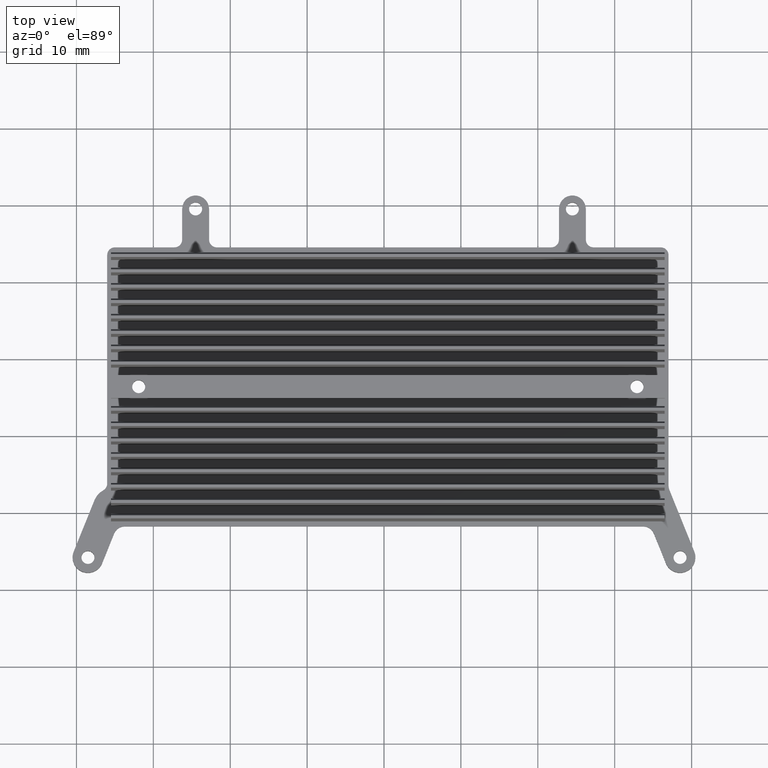
[diagram: clean part render]
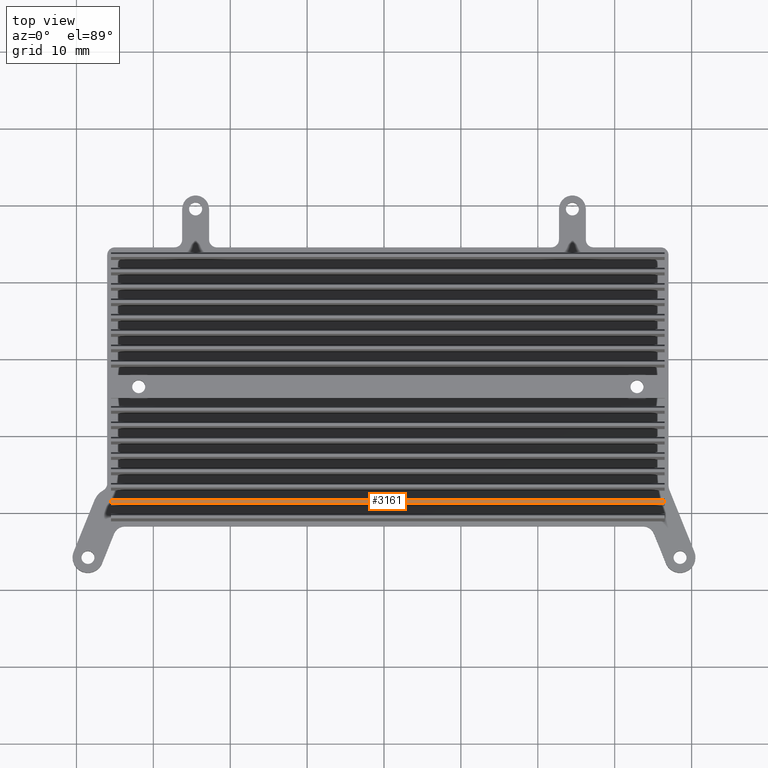
[diagram: same view with one face highlighted and labeled with its STEP entity id]
A machine part, top view. The second image highlights one B-rep face of the part: STEP entity #3161.
In plain terms, the highlighted planar face has unit normal (0, 0, -1).
Its self-contained STEP definition (entity closure, byte-faithful):
#27 = ORIENTED_EDGE ( 'NONE', *, *, #1851, .T. ) ;
#196 = ORIENTED_EDGE ( 'NONE', *, *, #3953, .F. ) ;
#364 = DIRECTION ( 'NONE',  ( 0.0000000000000000000, -1.000000000000000000, 0.0000000000000000000 ) ) ;
#395 = CARTESIAN_POINT ( 'NONE',  ( 1.000599999999999934, -18.41228009753999828, -0.5000000000000000000 ) ) ;
#740 = PLANE ( 'NONE',  #3795 ) ;
#758 = VECTOR ( 'NONE', #4217, 1000.000000000000000 ) ;
#867 = CARTESIAN_POINT ( 'NONE',  ( 1.000599999999999934, -18.81228009754000041, -0.5000000000000000000 ) ) ;
#1081 = CARTESIAN_POINT ( 'NONE',  ( 1.000599999999999934, -18.41228009753999828, -0.5000000000000000000 ) ) ;
#1216 = LINE ( 'NONE', #2961, #4460 ) ;
#1225 = ORIENTED_EDGE ( 'NONE', *, *, #3973, .T. ) ;
#1537 = VECTOR ( 'NONE', #3736, 1000.000000000000000 ) ;
#1665 = VERTEX_POINT ( 'NONE', #3372 ) ;
#1851 = EDGE_CURVE ( 'NONE', #3701, #1665, #3271, .T. ) ;
#1899 = EDGE_LOOP ( 'NONE', ( #196, #4083, #1225, #27 ) ) ;
#2074 = DIRECTION ( 'NONE',  ( 0.0000000000000000000, 0.0000000000000000000, -1.000000000000000000 ) ) ;
#2080 = VECTOR ( 'NONE', #3620, 1000.000000000000000 ) ;
#2198 = FACE_OUTER_BOUND ( 'NONE', #1899, .T. ) ;
#2795 = LINE ( 'NONE', #4336, #2080 ) ;
#2961 = CARTESIAN_POINT ( 'NONE',  ( -35.49940000000000140, -18.41228009753999828, -0.5000000000000000000 ) ) ;
#3161 = ADVANCED_FACE ( 'NONE', ( #2198 ), #740, .F. ) ;
#3271 = LINE ( 'NONE', #395, #758 ) ;
#3372 = CARTESIAN_POINT ( 'NONE',  ( -35.49940000000000140, -18.41228009753999828, -0.5000000000000000000 ) ) ;
#3514 = CARTESIAN_POINT ( 'NONE',  ( 36.49940000000000140, -18.81228009754000041, -0.5000000000000000000 ) ) ;
#3620 = DIRECTION ( 'NONE',  ( 0.0000000000000000000, 1.000000000000000000, 0.0000000000000000000 ) ) ;
#3701 = VERTEX_POINT ( 'NONE', #3928 ) ;
#3710 = VERTEX_POINT ( 'NONE', #4329 ) ;
#3726 = EDGE_CURVE ( 'NONE', #3710, #3854, #3778, .T. ) ;
#3736 = DIRECTION ( 'NONE',  ( 1.000000000000000000, 0.0000000000000000000, 0.0000000000000000000 ) ) ;
#3778 = LINE ( 'NONE', #867, #1537 ) ;
#3795 = AXIS2_PLACEMENT_3D ( 'NONE', #1081, #2074, #364 ) ;
#3854 = VERTEX_POINT ( 'NONE', #3514 ) ;
#3928 = CARTESIAN_POINT ( 'NONE',  ( 36.49940000000000140, -18.41228009753999828, -0.5000000000000000000 ) ) ;
#3953 = EDGE_CURVE ( 'NONE', #3710, #1665, #1216, .T. ) ;
#3973 = EDGE_CURVE ( 'NONE', #3854, #3701, #2795, .T. ) ;
#4083 = ORIENTED_EDGE ( 'NONE', *, *, #3726, .T. ) ;
#4217 = DIRECTION ( 'NONE',  ( -1.000000000000000000, 0.0000000000000000000, 0.0000000000000000000 ) ) ;
#4329 = CARTESIAN_POINT ( 'NONE',  ( -35.49940000000000140, -18.81228009754000041, -0.5000000000000000000 ) ) ;
#4336 = CARTESIAN_POINT ( 'NONE',  ( 36.49940000000000140, 14.53570848731999909, -0.5000000000000000000 ) ) ;
#4359 = DIRECTION ( 'NONE',  ( 0.0000000000000000000, 1.000000000000000000, 0.0000000000000000000 ) ) ;
#4460 = VECTOR ( 'NONE', #4359, 1000.000000000000000 ) ;